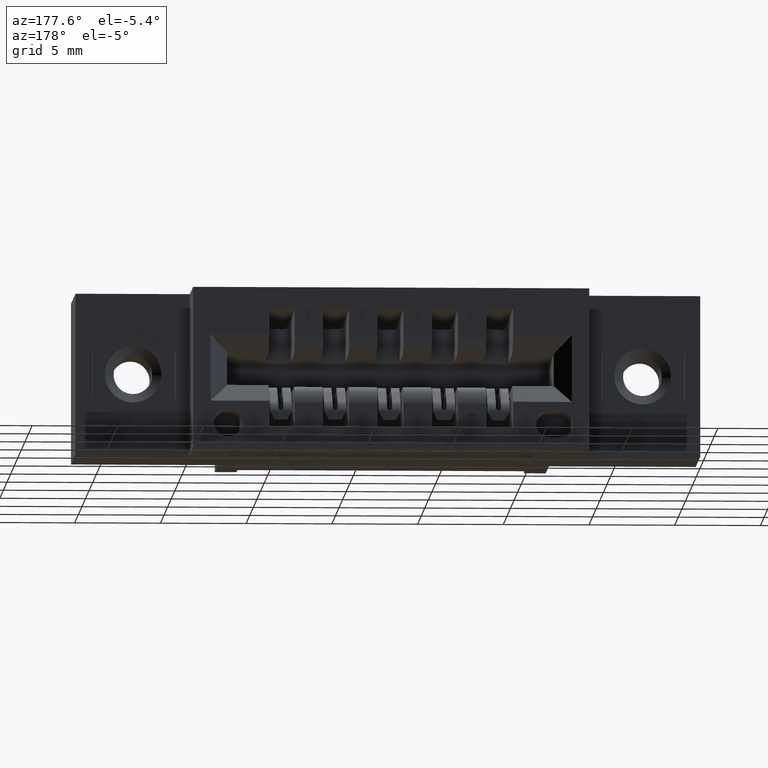
[diagram: clean part render]
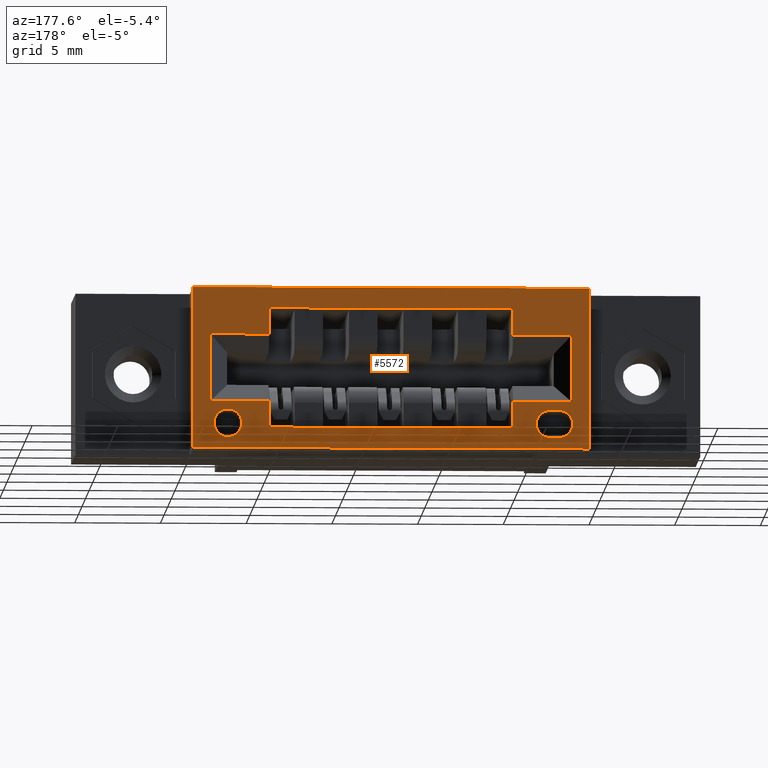
[diagram: same view with one face highlighted and labeled with its STEP entity id]
A machine part, auxiliary view. The second image highlights one B-rep face of the part: STEP entity #5572.
In plain terms, the highlighted planar face has unit normal (0, -1, 0).
Its self-contained STEP definition (entity closure, byte-faithful):
#3 = CARTESIAN_POINT ( 'NONE',  ( 0.4375000000000000555, 0.5999999999999999778, -0.3224999999999998423 ) ) ;
#22 = VERTEX_POINT ( 'NONE', #7893 ) ;
#35 = ORIENTED_EDGE ( 'NONE', *, *, #6714, .T. ) ;
#137 = CARTESIAN_POINT ( 'NONE',  ( 1.172500000000000098, 0.5999999999999999778, 0.0000000000000000000 ) ) ;
#147 = CARTESIAN_POINT ( 'NONE',  ( 0.9974999999999999423, 0.5999999999999999778, -0.2620000000000000662 ) ) ;
#166 = CARTESIAN_POINT ( 'NONE',  ( 0.9974999999999999423, 0.5999999999999998668, -0.1080000000000000820 ) ) ;
#202 = ORIENTED_EDGE ( 'NONE', *, *, #4665, .F. ) ;
#235 = ORIENTED_EDGE ( 'NONE', *, *, #2047, .T. ) ;
#308 = VERTEX_POINT ( 'NONE', #7829 ) ;
#419 = ORIENTED_EDGE ( 'NONE', *, *, #8707, .F. ) ;
#444 = FACE_BOUND ( 'NONE', #4467, .T. ) ;
#490 = VERTEX_POINT ( 'NONE', #166 ) ;
#540 = LINE ( 'NONE', #5029, #3966 ) ;
#573 = ORIENTED_EDGE ( 'NONE', *, *, #4080, .F. ) ;
#655 = CARTESIAN_POINT ( 'NONE',  ( 0.4375000000000000555, 0.5999999999999999778, -0.3224999999999998423 ) ) ;
#684 = LINE ( 'NONE', #2131, #4228 ) ;
#739 = VECTOR ( 'NONE', #5321, 39.37007874015748143 ) ;
#826 = CIRCLE ( 'NONE', #6206, 0.03099999999999998937 ) ;
#950 = CARTESIAN_POINT ( 'NONE',  ( 0.0000000000000000000, 0.5999999999999999778, 0.0000000000000000000 ) ) ;
#953 = DIRECTION ( 'NONE',  ( -0.0000000000000000000, -0.0000000000000000000, 1.000000000000000000 ) ) ;
#1099 = CARTESIAN_POINT ( 'NONE',  ( 0.0000000000000000000, 0.5999999999999999778, -0.3700000000000001621 ) ) ;
#1144 = DIRECTION ( 'NONE',  ( 0.0000000000000000000, 0.0000000000000000000, -1.000000000000000000 ) ) ;
#1164 = VECTOR ( 'NONE', #5762, 39.37007874015748143 ) ;
#1267 = CARTESIAN_POINT ( 'NONE',  ( 0.4375000000000000555, 0.5999999999999998668, -0.1080000000000000820 ) ) ;
#1331 = AXIS2_PLACEMENT_3D ( 'NONE', #9430, #6614, #9473 ) ;
#1452 = CARTESIAN_POINT ( 'NONE',  ( 0.3025000000000000466, 0.5999999999999999778, -0.2620000000000000662 ) ) ;
#1458 = VERTEX_POINT ( 'NONE', #4162 ) ;
#1584 = VERTEX_POINT ( 'NONE', #5967 ) ;
#1661 = VECTOR ( 'NONE', #5755, 39.37007874015748143 ) ;
#1724 = CARTESIAN_POINT ( 'NONE',  ( 1.132500000000000062, 0.5999999999999999778, -0.1080000000000000820 ) ) ;
#1918 = CARTESIAN_POINT ( 'NONE',  ( 0.3315000000000000169, 0.5999999999999999778, -0.3440000000000000835 ) ) ;
#1943 = EDGE_CURVE ( 'NONE', #9368, #1584, #826, .T. ) ;
#1950 = FACE_OUTER_BOUND ( 'NONE', #5413, .T. ) ;
#2002 = EDGE_LOOP ( 'NONE', ( #6667, #573 ) ) ;
#2047 = EDGE_CURVE ( 'NONE', #4542, #5594, #3935, .T. ) ;
#2055 = ORIENTED_EDGE ( 'NONE', *, *, #3843, .F. ) ;
#2091 = CIRCLE ( 'NONE', #6994, 0.03100000000000009345 ) ;
#2096 = VERTEX_POINT ( 'NONE', #5406 ) ;
#2131 = CARTESIAN_POINT ( 'NONE',  ( 0.3315000000000000169, 0.5999999999999999778, -0.2820000000000000839 ) ) ;
#2176 = VECTOR ( 'NONE', #6958, 39.37007874015748143 ) ;
#2221 = ORIENTED_EDGE ( 'NONE', *, *, #7944, .T. ) ;
#2270 = CARTESIAN_POINT ( 'NONE',  ( 0.0000000000000000000, 0.5999999999999999778, -0.1080000000000000820 ) ) ;
#2384 = DIRECTION ( 'NONE',  ( 1.000000000000000000, 0.0000000000000000000, 0.0000000000000000000 ) ) ;
#2414 = CARTESIAN_POINT ( 'NONE',  ( 0.3025000000000000466, 0.5999999999999999778, -0.3700000000000001621 ) ) ;
#2416 = VERTEX_POINT ( 'NONE', #8317 ) ;
#2465 = EDGE_CURVE ( 'NONE', #5436, #8947, #4714, .T. ) ;
#2471 = DIRECTION ( 'NONE',  ( 0.0000000000000000000, -0.0000000000000000000, -1.000000000000000000 ) ) ;
#2475 = LINE ( 'NONE', #3033, #8473 ) ;
#2494 = CARTESIAN_POINT ( 'NONE',  ( 0.9974999999999999423, 0.5999999999999998668, -0.04750000000000019484 ) ) ;
#2499 = LINE ( 'NONE', #6827, #3816 ) ;
#2522 = CARTESIAN_POINT ( 'NONE',  ( 0.3315000000000000169, 0.5999999999999999778, -0.3440000000000000835 ) ) ;
#2601 = CARTESIAN_POINT ( 'NONE',  ( 1.092500000000000249, 0.5999999999999999778, -0.3130000000000000560 ) ) ;
#2703 = DIRECTION ( 'NONE',  ( 0.0000000000000000000, 0.0000000000000000000, 1.000000000000000000 ) ) ;
#2726 = AXIS2_PLACEMENT_3D ( 'NONE', #2601, #3993, #6352 ) ;
#2807 = VERTEX_POINT ( 'NONE', #6540 ) ;
#2834 = ORIENTED_EDGE ( 'NONE', *, *, #6608, .T. ) ;
#2894 = VECTOR ( 'NONE', #5234, 39.37007874015748143 ) ;
#3033 = CARTESIAN_POINT ( 'NONE',  ( 0.9974999999999999423, 0.5999999999999999778, -0.3224999999999997868 ) ) ;
#3047 = ORIENTED_EDGE ( 'NONE', *, *, #9458, .T. ) ;
#3096 = VECTOR ( 'NONE', #6877, 39.37007874015748143 ) ;
#3306 = LINE ( 'NONE', #6232, #6087 ) ;
#3332 = ORIENTED_EDGE ( 'NONE', *, *, #4848, .F. ) ;
#3443 = DIRECTION ( 'NONE',  ( 0.0000000000000000000, 1.000000000000000000, 0.0000000000000000000 ) ) ;
#3510 = CARTESIAN_POINT ( 'NONE',  ( 1.092500000000000249, 0.5999999999999999778, -0.2809999999999996945 ) ) ;
#3567 = DIRECTION ( 'NONE',  ( 1.000000000000000000, 0.0000000000000000000, 0.0000000000000000000 ) ) ;
#3588 = DIRECTION ( 'NONE',  ( 0.0000000000000000000, -2.483498176058424693E-16, 1.000000000000000000 ) ) ;
#3590 = VERTEX_POINT ( 'NONE', #7377 ) ;
#3692 = CARTESIAN_POINT ( 'NONE',  ( 0.2625000000000000111, 0.5999999999999999778, -0.3700000000000001621 ) ) ;
#3765 = VERTEX_POINT ( 'NONE', #1267 ) ;
#3808 = CARTESIAN_POINT ( 'NONE',  ( 1.132500000000000062, 0.5999999999999999778, -0.2620000000000000662 ) ) ;
#3816 = VECTOR ( 'NONE', #7487, 39.37007874015748143 ) ;
#3843 = EDGE_CURVE ( 'NONE', #2096, #8947, #5139, .T. ) ;
#3849 = AXIS2_PLACEMENT_3D ( 'NONE', #7601, #6852, #2471 ) ;
#3878 = CARTESIAN_POINT ( 'NONE',  ( 0.0000000000000000000, 0.5999999999999999778, -0.2620000000000000662 ) ) ;
#3935 = LINE ( 'NONE', #950, #3096 ) ;
#3949 = VERTEX_POINT ( 'NONE', #147 ) ;
#3966 = VECTOR ( 'NONE', #3567, 39.37007874015748143 ) ;
#3993 = DIRECTION ( 'NONE',  ( 0.0000000000000000000, 1.000000000000000000, 0.0000000000000000000 ) ) ;
#3997 = VERTEX_POINT ( 'NONE', #3692 ) ;
#4080 = EDGE_CURVE ( 'NONE', #3590, #5868, #8598, .T. ) ;
#4125 = CARTESIAN_POINT ( 'NONE',  ( 0.3534999999999999254, 0.5999999999999999778, -0.3130000000000000560 ) ) ;
#4162 = CARTESIAN_POINT ( 'NONE',  ( 0.4375000000000000555, 0.5999999999999998668, -0.04750000000000024342 ) ) ;
#4219 = CARTESIAN_POINT ( 'NONE',  ( 1.132500000000000062, 0.5999999999999999778, -0.3700000000000001621 ) ) ;
#4228 = VECTOR ( 'NONE', #9507, 39.37007874015748143 ) ;
#4300 = EDGE_CURVE ( 'NONE', #5868, #3590, #7162, .T. ) ;
#4467 = EDGE_LOOP ( 'NONE', ( #202, #5088, #5075, #3332 ) ) ;
#4542 = VERTEX_POINT ( 'NONE', #8251 ) ;
#4665 = EDGE_CURVE ( 'NONE', #1584, #308, #684, .T. ) ;
#4714 = LINE ( 'NONE', #3878, #7436 ) ;
#4844 = LINE ( 'NONE', #1918, #7784 ) ;
#4848 = EDGE_CURVE ( 'NONE', #308, #2416, #2091, .T. ) ;
#4871 = FACE_BOUND ( 'NONE', #4942, .T. ) ;
#4937 = ORIENTED_EDGE ( 'NONE', *, *, #5828, .T. ) ;
#4942 = EDGE_LOOP ( 'NONE', ( #6348, #2834, #35, #7444, #2055, #3047, #8273, #2221, #4937, #6136, #6241, #419 ) ) ;
#4943 = LINE ( 'NONE', #6388, #9201 ) ;
#4974 = CARTESIAN_POINT ( 'NONE',  ( 0.4375000000000000555, 0.5999999999999999778, -0.3224999999999998423 ) ) ;
#5012 = LINE ( 'NONE', #4974, #7362 ) ;
#5029 = CARTESIAN_POINT ( 'NONE',  ( 0.0000000000000000000, 0.5999999999999999778, -0.2620000000000000662 ) ) ;
#5075 = ORIENTED_EDGE ( 'NONE', *, *, #7447, .F. ) ;
#5088 = ORIENTED_EDGE ( 'NONE', *, *, #1943, .F. ) ;
#5139 = LINE ( 'NONE', #3, #1164 ) ;
#5234 = DIRECTION ( 'NONE',  ( -1.000000000000000000, 0.0000000000000000000, 0.0000000000000000000 ) ) ;
#5275 = LINE ( 'NONE', #8863, #2894 ) ;
#5321 = DIRECTION ( 'NONE',  ( 0.0000000000000000000, 0.0000000000000000000, -1.000000000000000000 ) ) ;
#5371 = EDGE_CURVE ( 'NONE', #9246, #5594, #7548, .T. ) ;
#5406 = CARTESIAN_POINT ( 'NONE',  ( 0.4375000000000000555, 0.5999999999999999778, -0.3224999999999998423 ) ) ;
#5413 = EDGE_LOOP ( 'NONE', ( #235, #7553, #8313, #7815 ) ) ;
#5436 = VERTEX_POINT ( 'NONE', #1452 ) ;
#5522 = VERTEX_POINT ( 'NONE', #3808 ) ;
#5572 = ADVANCED_FACE ( 'NONE', ( #8452, #444, #1950, #4871 ), #9085, .F. ) ;
#5594 = VERTEX_POINT ( 'NONE', #137 ) ;
#5755 = DIRECTION ( 'NONE',  ( -1.000000000000000000, 0.0000000000000000000, 0.0000000000000000000 ) ) ;
#5762 = DIRECTION ( 'NONE',  ( 0.0000000000000000000, -2.483498176058424693E-16, 1.000000000000000000 ) ) ;
#5777 = EDGE_CURVE ( 'NONE', #9246, #3997, #6919, .T. ) ;
#5828 = EDGE_CURVE ( 'NONE', #5522, #8845, #7812, .T. ) ;
#5868 = VERTEX_POINT ( 'NONE', #3510 ) ;
#5967 = CARTESIAN_POINT ( 'NONE',  ( 0.3315000000000000169, 0.5999999999999999778, -0.2820000000000000839 ) ) ;
#6087 = VECTOR ( 'NONE', #9179, 39.37007874015748143 ) ;
#6136 = ORIENTED_EDGE ( 'NONE', *, *, #8235, .T. ) ;
#6206 = AXIS2_PLACEMENT_3D ( 'NONE', #7157, #3443, #2703 ) ;
#6232 = CARTESIAN_POINT ( 'NONE',  ( 0.9974999999999999423, 0.5999999999999999778, -0.3224999999999997868 ) ) ;
#6241 = ORIENTED_EDGE ( 'NONE', *, *, #9331, .T. ) ;
#6267 = EDGE_CURVE ( 'NONE', #2807, #3949, #3306, .T. ) ;
#6288 = VERTEX_POINT ( 'NONE', #2494 ) ;
#6348 = ORIENTED_EDGE ( 'NONE', *, *, #9475, .F. ) ;
#6352 = DIRECTION ( 'NONE',  ( 0.0000000000000000000, 0.0000000000000000000, 1.000000000000000000 ) ) ;
#6376 = DIRECTION ( 'NONE',  ( -1.000000000000000000, -0.0000000000000000000, 6.208745440146073961E-15 ) ) ;
#6388 = CARTESIAN_POINT ( 'NONE',  ( 0.2625000000000000111, 0.5999999999999999778, 0.0000000000000000000 ) ) ;
#6540 = CARTESIAN_POINT ( 'NONE',  ( 0.9974999999999999423, 0.5999999999999999778, -0.3224999999999997868 ) ) ;
#6608 = EDGE_CURVE ( 'NONE', #3765, #22, #5275, .T. ) ;
#6614 = DIRECTION ( 'NONE',  ( 0.0000000000000000000, 1.000000000000000000, 0.0000000000000000000 ) ) ;
#6667 = ORIENTED_EDGE ( 'NONE', *, *, #4300, .F. ) ;
#6701 = LINE ( 'NONE', #2270, #1661 ) ;
#6714 = EDGE_CURVE ( 'NONE', #22, #5436, #7022, .T. ) ;
#6827 = CARTESIAN_POINT ( 'NONE',  ( 0.4375000000000000555, 0.5999999999999998668, -0.04750000000000024342 ) ) ;
#6852 = DIRECTION ( 'NONE',  ( 0.0000000000000000000, -1.000000000000000000, 0.0000000000000000000 ) ) ;
#6876 = EDGE_CURVE ( 'NONE', #4542, #3997, #4943, .T. ) ;
#6877 = DIRECTION ( 'NONE',  ( 1.000000000000000000, 0.0000000000000000000, 0.0000000000000000000 ) ) ;
#6919 = LINE ( 'NONE', #1099, #2176 ) ;
#6958 = DIRECTION ( 'NONE',  ( -1.000000000000000000, -0.0000000000000000000, -9.518634124265725079E-17 ) ) ;
#6994 = AXIS2_PLACEMENT_3D ( 'NONE', #4125, #7809, #9236 ) ;
#7022 = LINE ( 'NONE', #2414, #739 ) ;
#7054 = VECTOR ( 'NONE', #953, 39.37007874015748143 ) ;
#7157 = CARTESIAN_POINT ( 'NONE',  ( 0.3315000000000000724, 0.5999999999999999778, -0.3130000000000000560 ) ) ;
#7162 = CIRCLE ( 'NONE', #1331, 0.03200000000000033373 ) ;
#7226 = CARTESIAN_POINT ( 'NONE',  ( 1.172500000000000098, 0.5999999999999999778, -0.3699999999999999400 ) ) ;
#7236 = LINE ( 'NONE', #655, #8295 ) ;
#7362 = VECTOR ( 'NONE', #8724, 39.37007874015748143 ) ;
#7377 = CARTESIAN_POINT ( 'NONE',  ( 1.092500000000000249, 0.5999999999999999778, -0.3450000000000004174 ) ) ;
#7436 = VECTOR ( 'NONE', #2384, 39.37007874015748143 ) ;
#7444 = ORIENTED_EDGE ( 'NONE', *, *, #2465, .T. ) ;
#7447 = EDGE_CURVE ( 'NONE', #2416, #9368, #4844, .T. ) ;
#7487 = DIRECTION ( 'NONE',  ( 1.000000000000000000, -0.0000000000000000000, -0.0000000000000000000 ) ) ;
#7548 = LINE ( 'NONE', #9145, #7054 ) ;
#7553 = ORIENTED_EDGE ( 'NONE', *, *, #5371, .F. ) ;
#7601 = CARTESIAN_POINT ( 'NONE',  ( 0.0000000000000000000, 0.5999999999999999778, -0.3700000000000001621 ) ) ;
#7784 = VECTOR ( 'NONE', #6376, 39.37007874015748143 ) ;
#7809 = DIRECTION ( 'NONE',  ( 0.0000000000000000000, 1.000000000000000000, 0.0000000000000000000 ) ) ;
#7812 = LINE ( 'NONE', #4219, #8381 ) ;
#7815 = ORIENTED_EDGE ( 'NONE', *, *, #6876, .F. ) ;
#7829 = CARTESIAN_POINT ( 'NONE',  ( 0.3534999999999999254, 0.5999999999999999778, -0.2819999999999999729 ) ) ;
#7893 = CARTESIAN_POINT ( 'NONE',  ( 0.3025000000000000466, 0.5999999999999999778, -0.1080000000000000820 ) ) ;
#7944 = EDGE_CURVE ( 'NONE', #3949, #5522, #540, .T. ) ;
#8148 = DIRECTION ( 'NONE',  ( 0.0000000000000000000, -2.483498176058424693E-16, 1.000000000000000000 ) ) ;
#8235 = EDGE_CURVE ( 'NONE', #8845, #490, #6701, .T. ) ;
#8251 = CARTESIAN_POINT ( 'NONE',  ( 0.2625000000000000111, 0.5999999999999999778, 0.0000000000000000000 ) ) ;
#8273 = ORIENTED_EDGE ( 'NONE', *, *, #6267, .T. ) ;
#8295 = VECTOR ( 'NONE', #3588, 39.37007874015748143 ) ;
#8313 = ORIENTED_EDGE ( 'NONE', *, *, #5777, .T. ) ;
#8317 = CARTESIAN_POINT ( 'NONE',  ( 0.3534999999999999254, 0.5999999999999999778, -0.3440000000000001945 ) ) ;
#8381 = VECTOR ( 'NONE', #9281, 39.37007874015748143 ) ;
#8452 = FACE_BOUND ( 'NONE', #2002, .T. ) ;
#8473 = VECTOR ( 'NONE', #8148, 39.37007874015748143 ) ;
#8598 = CIRCLE ( 'NONE', #2726, 0.03200000000000033373 ) ;
#8707 = EDGE_CURVE ( 'NONE', #1458, #6288, #2499, .T. ) ;
#8724 = DIRECTION ( 'NONE',  ( 1.000000000000000000, -0.0000000000000000000, -0.0000000000000000000 ) ) ;
#8728 = CARTESIAN_POINT ( 'NONE',  ( 0.4375000000000000555, 0.5999999999999999778, -0.2620000000000000662 ) ) ;
#8845 = VERTEX_POINT ( 'NONE', #1724 ) ;
#8863 = CARTESIAN_POINT ( 'NONE',  ( 0.0000000000000000000, 0.5999999999999999778, -0.1080000000000000820 ) ) ;
#8947 = VERTEX_POINT ( 'NONE', #8728 ) ;
#9085 = PLANE ( 'NONE',  #3849 ) ;
#9145 = CARTESIAN_POINT ( 'NONE',  ( 1.172500000000000098, 0.5999999999999999778, 0.0000000000000000000 ) ) ;
#9179 = DIRECTION ( 'NONE',  ( 0.0000000000000000000, -2.483498176058424693E-16, 1.000000000000000000 ) ) ;
#9201 = VECTOR ( 'NONE', #1144, 39.37007874015748143 ) ;
#9236 = DIRECTION ( 'NONE',  ( 0.0000000000000000000, 0.0000000000000000000, 1.000000000000000000 ) ) ;
#9246 = VERTEX_POINT ( 'NONE', #7226 ) ;
#9281 = DIRECTION ( 'NONE',  ( 0.0000000000000000000, 0.0000000000000000000, 1.000000000000000000 ) ) ;
#9331 = EDGE_CURVE ( 'NONE', #490, #6288, #2475, .T. ) ;
#9368 = VERTEX_POINT ( 'NONE', #2522 ) ;
#9430 = CARTESIAN_POINT ( 'NONE',  ( 1.092500000000000249, 0.5999999999999999778, -0.3130000000000000560 ) ) ;
#9458 = EDGE_CURVE ( 'NONE', #2096, #2807, #5012, .T. ) ;
#9473 = DIRECTION ( 'NONE',  ( 0.0000000000000000000, 0.0000000000000000000, 1.000000000000000000 ) ) ;
#9475 = EDGE_CURVE ( 'NONE', #3765, #1458, #7236, .T. ) ;
#9507 = DIRECTION ( 'NONE',  ( 1.000000000000000000, 0.0000000000000000000, 3.104372720073036980E-15 ) ) ;